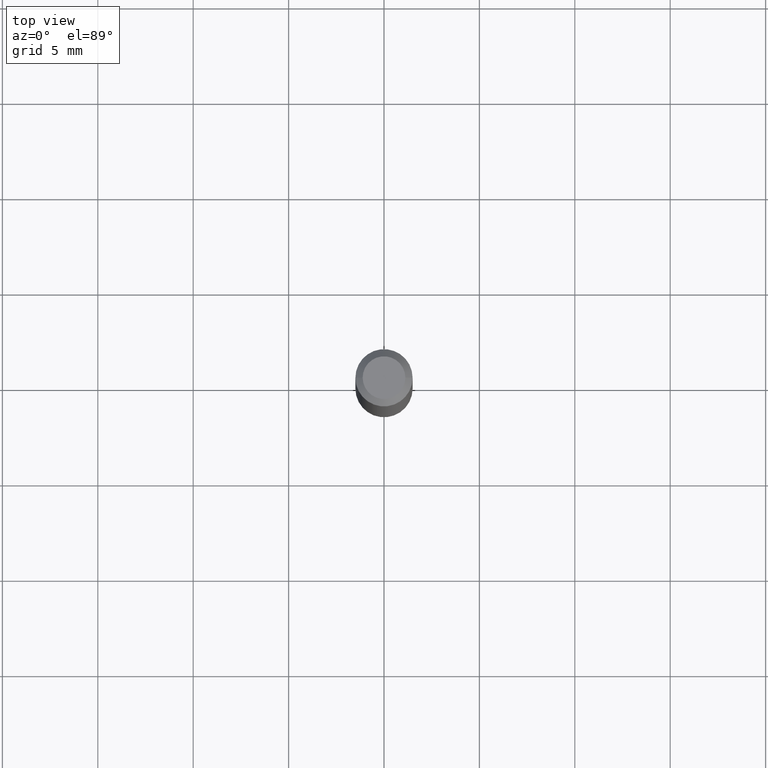
[diagram: clean part render]
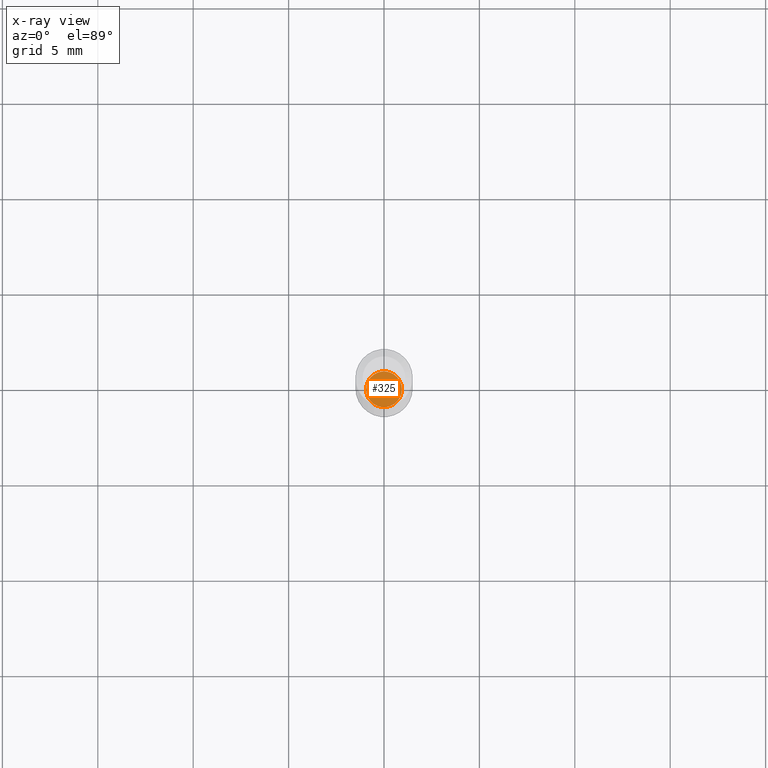
[diagram: x-ray — body ghosted, one internal face saturated and labeled with its STEP entity id]
A machine part, top view, then the same camera in x-ray: the body is ghosted and one INTERNAL B-rep face — a face not visible from any outside direction — is saturated and labeled: STEP entity #325.
In plain terms, the highlighted planar face has unit normal (-0, 0, 1).
Its self-contained STEP definition (entity closure, byte-faithful):
#39 = EDGE_LOOP ( 'NONE', ( #404, #176 ) ) ;
#50 = VERTEX_POINT ( 'NONE', #328 ) ;
#55 = AXIS2_PLACEMENT_3D ( 'NONE', #284, #433, #392 ) ;
#57 = FACE_OUTER_BOUND ( 'NONE', #39, .T. ) ;
#73 = EDGE_CURVE ( 'NONE', #416, #50, #423, .T. ) ;
#94 = CARTESIAN_POINT ( 'NONE',  ( 3.393821609223733606E-29, -4.845477802046518576E-15, -1.387800000000000367 ) ) ;
#135 = DIRECTION ( 'NONE',  ( 1.000000000000000000, -6.982962677686265922E-15, 4.876176775795935793E-29 ) ) ;
#163 = DIRECTION ( 'NONE',  ( 1.000000000000000000, -6.982962677686261189E-15, 0.000000000000000000 ) ) ;
#176 = ORIENTED_EDGE ( 'NONE', *, *, #424, .F. ) ;
#201 = CARTESIAN_POINT ( 'NONE',  ( 3.393821609223733606E-29, -4.845477802046518576E-15, -1.387800000000000367 ) ) ;
#209 = AXIS2_PLACEMENT_3D ( 'NONE', #201, #452, #163 ) ;
#266 = DIRECTION ( 'NONE',  ( -2.438088387897960049E-29, 3.491481338843145188E-15, 1.000000000000000000 ) ) ;
#273 = PLANE ( 'NONE',  #417 ) ;
#284 = CARTESIAN_POINT ( 'NONE',  ( 3.393821609223733606E-29, -4.845477802046518576E-15, -1.387800000000000367 ) ) ;
#325 = ADVANCED_FACE ( 'NONE', ( #57 ), #273, .F. ) ;
#328 = CARTESIAN_POINT ( 'NONE',  ( -0.03690000000000000224, -4.580638305376928517E-15, -1.387800000000000367 ) ) ;
#392 = DIRECTION ( 'NONE',  ( 1.000000000000000000, -6.982962677686261189E-15, 0.000000000000000000 ) ) ;
#404 = ORIENTED_EDGE ( 'NONE', *, *, #73, .F. ) ;
#416 = VERTEX_POINT ( 'NONE', #427 ) ;
#417 = AXIS2_PLACEMENT_3D ( 'NONE', #94, #266, #135 ) ;
#423 = CIRCLE ( 'NONE', #55, 0.03690000000000000224 ) ;
#424 = EDGE_CURVE ( 'NONE', #50, #416, #440, .T. ) ;
#427 = CARTESIAN_POINT ( 'NONE',  ( 0.03690000000000000224, -5.103149124853141181E-15, -1.387800000000000367 ) ) ;
#433 = DIRECTION ( 'NONE',  ( -2.445468806185136597E-29, 3.491481338843145583E-15, 1.000000000000000000 ) ) ;
#440 = CIRCLE ( 'NONE', #209, 0.03690000000000000224 ) ;
#452 = DIRECTION ( 'NONE',  ( -2.445468806185136597E-29, 3.491481338843145583E-15, 1.000000000000000000 ) ) ;